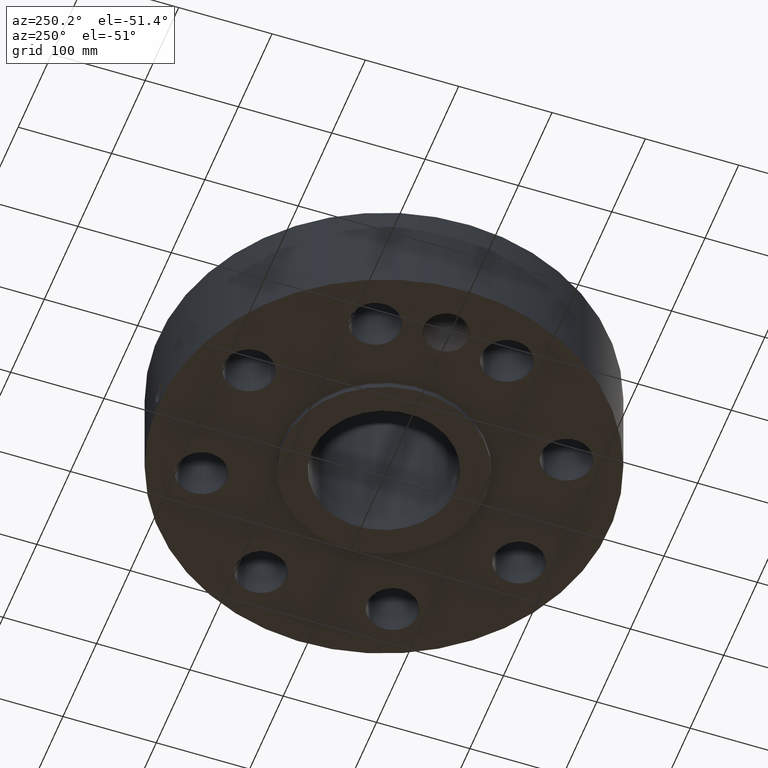
[diagram: clean part render]
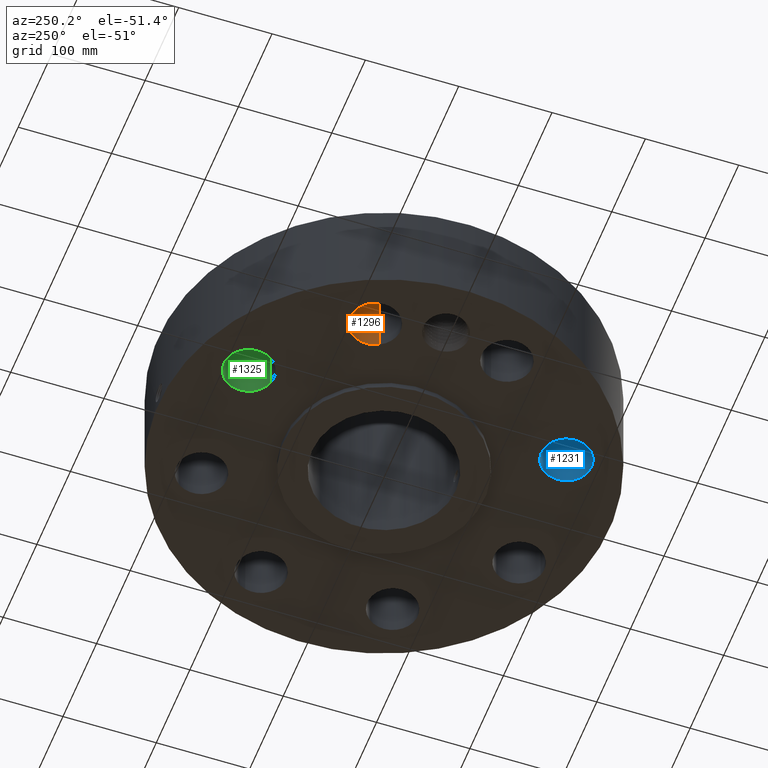
[diagram: same view with three faces highlighted in distinct colors, each labeled with its STEP entity id]
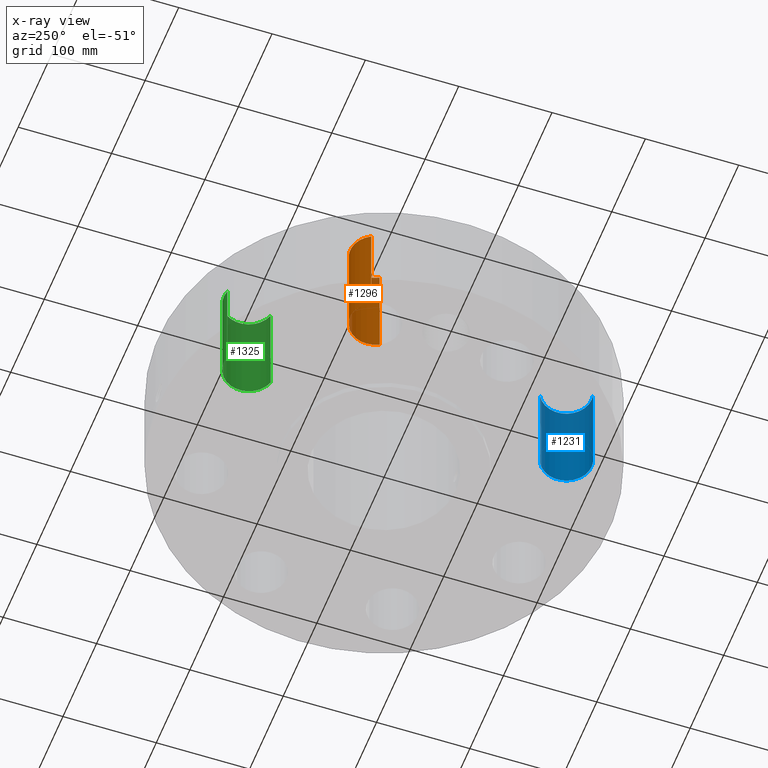
[diagram: x-ray of the same camera — body ghosted, the three highlighted faces saturated]
A machine part, auxiliary view with three faces highlighted in distinct colors.
The next image is the same camera in x-ray (body ghosted, the three faces saturated) — at least one of them is partly hidden behind the body in this view.
Their STEP definitions:

[orange] entity #1296 — the highlighted cylindrical surface (edge-blend (fillet) strip) has radius 26.924 mm, axis along (-0, 0, -1).
#343=AXIS2_PLACEMENT_3D('Circle Axis2P3D',#341,#342,$) ;
#663=AXIS2_PLACEMENT_3D('Circle Axis2P3D',#661,#662,$) ;
#1271=AXIS2_PLACEMENT_3D('Cylinder Axis2P3D',#1268,#1269,#1270) ;
#336=CARTESIAN_POINT('Vertex',(-5.76788909513,2.26626381374,0.250000000001)) ;
#338=CARTESIAN_POINT('Vertex',(-7.62836412634,3.28264595558,0.250000000001)) ;
#341=CARTESIAN_POINT('Axis2P3D Location',(-6.69812661073,2.77445488466,0.250000000001)) ;
#661=CARTESIAN_POINT('Axis2P3D Location',(-6.69812661073,2.77445488466,4.50000000002)) ;
#665=CARTESIAN_POINT('Vertex',(-7.62836412634,3.28264595558,4.50000000002)) ;
#667=CARTESIAN_POINT('Vertex',(-5.76788909513,2.26626381374,4.50000000002)) ;
#1268=CARTESIAN_POINT('Axis2P3D Location',(-6.69812661073,2.77445488466,4.49606299214)) ;
#1273=CARTESIAN_POINT('Line Origine',(-5.76788909513,2.26626381374,2.37500000001)) ;
#1278=CARTESIAN_POINT('Line Origine',(-7.62836412634,3.28264595558,2.37500000001)) ;
#342=DIRECTION('Axis2P3D Direction',(0.,0.,-0.0393700787402)) ;
#662=DIRECTION('Axis2P3D Direction',(0.,0.,-0.0393700787402)) ;
#1269=DIRECTION('Axis2P3D Direction',(-0.,0.,-0.0393700787402)) ;
#1270=DIRECTION('Axis2P3D XDirection',(-0.0345504945626,0.0188750212049,0.)) ;
#1274=DIRECTION('Vector Direction',(0.,0.,-0.0393700787402)) ;
#1279=DIRECTION('Vector Direction',(0.,0.,-0.0393700787402)) ;
#1275=VECTOR('Line Direction',#1274,0.0393700787402) ;
#1280=VECTOR('Line Direction',#1279,0.0393700787402) ;
#1291=ORIENTED_EDGE('',*,*,#1282,.F.) ;
#1292=ORIENTED_EDGE('',*,*,#345,.T.) ;
#1293=ORIENTED_EDGE('',*,*,#1277,.T.) ;
#1294=ORIENTED_EDGE('',*,*,#669,.F.) ;
#1296=ADVANCED_FACE('PartBody',(#1295),#1272,.F.) ;
#344=CIRCLE('generated circle',#343,1.06) ;
#664=CIRCLE('generated circle',#663,1.06) ;
#1272=CYLINDRICAL_SURFACE('generated cylinder',#1271,1.06) ;
#345=EDGE_CURVE('',#339,#337,#344,.T.) ;
#669=EDGE_CURVE('',#666,#668,#664,.T.) ;
#1277=EDGE_CURVE('',#337,#668,#1276,.F.) ;
#1282=EDGE_CURVE('',#339,#666,#1281,.F.) ;
#1290=EDGE_LOOP('',(#1291,#1292,#1293,#1294)) ;
#1295=FACE_OUTER_BOUND('',#1290,.T.) ;
#1276=LINE('Line',#1273,#1275) ;
#1281=LINE('Line',#1278,#1280) ;
#337=VERTEX_POINT('',#336) ;
#339=VERTEX_POINT('',#338) ;
#666=VERTEX_POINT('',#665) ;
#668=VERTEX_POINT('',#667) ;

[blue] entity #1231 — the highlighted cylindrical surface (edge-blend (fillet) strip) has radius 26.924 mm, axis along (0, -0, -1).
#298=AXIS2_PLACEMENT_3D('Circle Axis2P3D',#296,#297,$) ;
#636=AXIS2_PLACEMENT_3D('Circle Axis2P3D',#634,#635,$) ;
#1213=AXIS2_PLACEMENT_3D('Cylinder Axis2P3D',#1210,#1211,#1212) ;
#296=CARTESIAN_POINT('Axis2P3D Location',(-2.77445488466,-6.69812661073,0.250000000001)) ;
#300=CARTESIAN_POINT('Vertex',(-2.26626381374,-5.76788909513,0.250000000001)) ;
#302=CARTESIAN_POINT('Vertex',(-3.28264595558,-7.62836412634,0.250000000001)) ;
#629=CARTESIAN_POINT('Vertex',(-3.28264595558,-7.62836412634,4.50000000002)) ;
#631=CARTESIAN_POINT('Vertex',(-2.26626381374,-5.76788909513,4.50000000002)) ;
#634=CARTESIAN_POINT('Axis2P3D Location',(-2.77445488466,-6.69812661073,4.50000000002)) ;
#1210=CARTESIAN_POINT('Axis2P3D Location',(-2.77445488466,-6.69812661073,4.49606299214)) ;
#1215=CARTESIAN_POINT('Line Origine',(-2.26626381374,-5.76788909513,2.37500000001)) ;
#1220=CARTESIAN_POINT('Line Origine',(-3.28264595558,-7.62836412634,2.37500000001)) ;
#297=DIRECTION('Axis2P3D Direction',(0.,0.,-0.0393700787402)) ;
#635=DIRECTION('Axis2P3D Direction',(0.,0.,-0.0393700787402)) ;
#1211=DIRECTION('Axis2P3D Direction',(0.,-0.,-0.0393700787402)) ;
#1212=DIRECTION('Axis2P3D XDirection',(-0.0188750212049,-0.0345504945626,0.)) ;
#1216=DIRECTION('Vector Direction',(0.,0.,-0.0393700787402)) ;
#1221=DIRECTION('Vector Direction',(0.,0.,-0.0393700787402)) ;
#1217=VECTOR('Line Direction',#1216,0.0393700787402) ;
#1222=VECTOR('Line Direction',#1221,0.0393700787402) ;
#1226=ORIENTED_EDGE('',*,*,#1219,.F.) ;
#1227=ORIENTED_EDGE('',*,*,#304,.T.) ;
#1228=ORIENTED_EDGE('',*,*,#1224,.T.) ;
#1229=ORIENTED_EDGE('',*,*,#638,.F.) ;
#1231=ADVANCED_FACE('PartBody',(#1230),#1214,.F.) ;
#299=CIRCLE('generated circle',#298,1.06) ;
#637=CIRCLE('generated circle',#636,1.06) ;
#1214=CYLINDRICAL_SURFACE('generated cylinder',#1213,1.06) ;
#304=EDGE_CURVE('',#301,#303,#299,.T.) ;
#638=EDGE_CURVE('',#632,#630,#637,.T.) ;
#1219=EDGE_CURVE('',#301,#632,#1218,.F.) ;
#1224=EDGE_CURVE('',#303,#630,#1223,.F.) ;
#1225=EDGE_LOOP('',(#1226,#1227,#1228,#1229)) ;
#1230=FACE_OUTER_BOUND('',#1225,.T.) ;
#1218=LINE('Line',#1215,#1217) ;
#1223=LINE('Line',#1220,#1222) ;
#301=VERTEX_POINT('',#300) ;
#303=VERTEX_POINT('',#302) ;
#630=VERTEX_POINT('',#629) ;
#632=VERTEX_POINT('',#631) ;

[green] entity #1325 — the highlighted cylindrical surface (edge-blend (fillet) strip) has radius 26.924 mm, axis along (0, 0, -1).
#361=AXIS2_PLACEMENT_3D('Circle Axis2P3D',#359,#360,$) ;
#681=AXIS2_PLACEMENT_3D('Circle Axis2P3D',#679,#680,$) ;
#1300=AXIS2_PLACEMENT_3D('Cylinder Axis2P3D',#1297,#1298,#1299) ;
#354=CARTESIAN_POINT('Vertex',(-2.47602298165,5.68100400295,0.250000000001)) ;
#356=CARTESIAN_POINT('Vertex',(-3.07288678767,7.71524921852,0.250000000001)) ;
#359=CARTESIAN_POINT('Axis2P3D Location',(-2.77445488466,6.69812661073,0.250000000001)) ;
#679=CARTESIAN_POINT('Axis2P3D Location',(-2.77445488466,6.69812661073,4.50000000002)) ;
#683=CARTESIAN_POINT('Vertex',(-3.07288678767,7.71524921852,4.50000000002)) ;
#685=CARTESIAN_POINT('Vertex',(-2.47602298165,5.68100400295,4.50000000002)) ;
#1297=CARTESIAN_POINT('Axis2P3D Location',(-2.77445488466,6.69812661073,4.49606299214)) ;
#1302=CARTESIAN_POINT('Line Origine',(-2.47602298165,5.68100400295,2.37500000001)) ;
#1307=CARTESIAN_POINT('Line Origine',(-3.07288678767,7.71524921852,2.37500000001)) ;
#360=DIRECTION('Axis2P3D Direction',(0.,0.,-0.0393700787402)) ;
#680=DIRECTION('Axis2P3D Direction',(0.,0.,-0.0393700787402)) ;
#1298=DIRECTION('Axis2P3D Direction',(0.,0.,-0.0393700787402)) ;
#1299=DIRECTION('Axis2P3D XDirection',(-0.0110842335096,0.0377775444876,0.)) ;
#1303=DIRECTION('Vector Direction',(0.,0.,-0.0393700787402)) ;
#1308=DIRECTION('Vector Direction',(0.,0.,-0.0393700787402)) ;
#1304=VECTOR('Line Direction',#1303,0.0393700787402) ;
#1309=VECTOR('Line Direction',#1308,0.0393700787402) ;
#1320=ORIENTED_EDGE('',*,*,#1311,.F.) ;
#1321=ORIENTED_EDGE('',*,*,#363,.T.) ;
#1322=ORIENTED_EDGE('',*,*,#1306,.T.) ;
#1323=ORIENTED_EDGE('',*,*,#687,.F.) ;
#1325=ADVANCED_FACE('PartBody',(#1324),#1301,.F.) ;
#362=CIRCLE('generated circle',#361,1.06) ;
#682=CIRCLE('generated circle',#681,1.06) ;
#1301=CYLINDRICAL_SURFACE('generated cylinder',#1300,1.06) ;
#363=EDGE_CURVE('',#357,#355,#362,.T.) ;
#687=EDGE_CURVE('',#684,#686,#682,.T.) ;
#1306=EDGE_CURVE('',#355,#686,#1305,.F.) ;
#1311=EDGE_CURVE('',#357,#684,#1310,.F.) ;
#1319=EDGE_LOOP('',(#1320,#1321,#1322,#1323)) ;
#1324=FACE_OUTER_BOUND('',#1319,.T.) ;
#1305=LINE('Line',#1302,#1304) ;
#1310=LINE('Line',#1307,#1309) ;
#355=VERTEX_POINT('',#354) ;
#357=VERTEX_POINT('',#356) ;
#684=VERTEX_POINT('',#683) ;
#686=VERTEX_POINT('',#685) ;